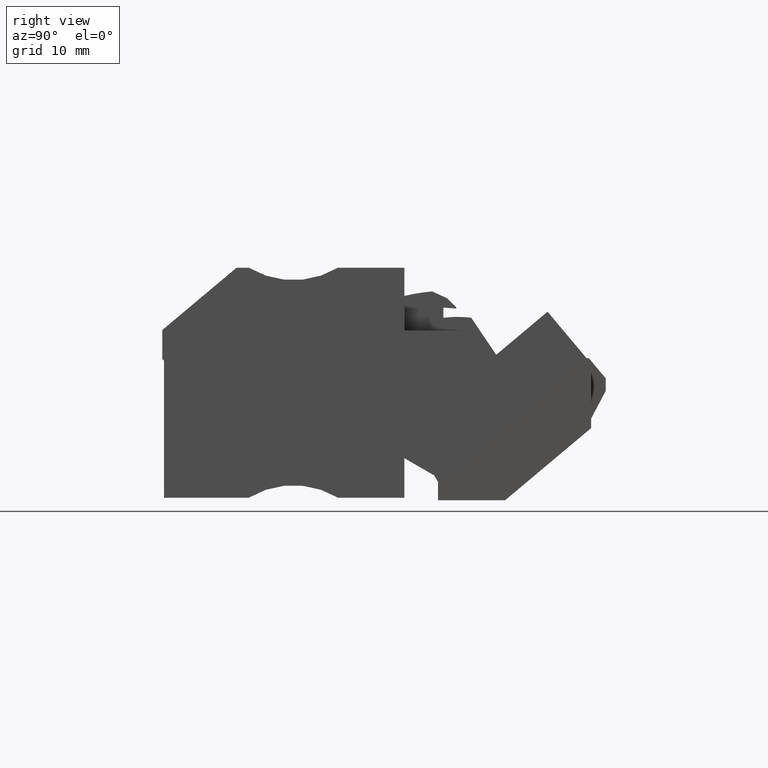
[diagram: clean part render]
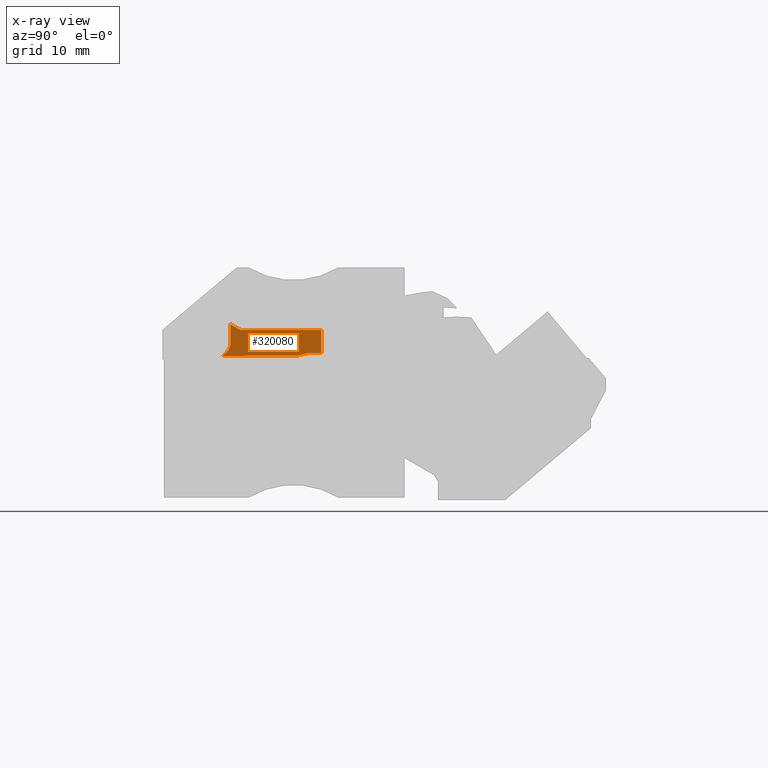
[diagram: x-ray — body ghosted, one internal face saturated and labeled with its STEP entity id]
A machine part, right view, then the same camera in x-ray: the body is ghosted and one INTERNAL B-rep face — a face not visible from any outside direction — is saturated and labeled: STEP entity #320080.
In plain terms, the highlighted planar face has unit normal (-1, 0, 0).
Its self-contained STEP definition (entity closure, byte-faithful):
#115130=CARTESIAN_POINT('',(423.016914991146,683.886335208509,
84.6699999829062));
#115140=DIRECTION('',(0.965925826756713,0.258819043357248,
-3.79102048216828E-11));
#115150=VECTOR('',#115140,1.);
#115160=LINE('',#115130,#115150);
#115170=CARTESIAN_POINT('',(436.068013272554,687.383366428071,
84.6699999823968));
#115180=VERTEX_POINT('',#115170);
#115190=CARTESIAN_POINT('',(437.004730016151,687.634358921055,
84.6699999823573));
#115200=VERTEX_POINT('',#115190);
#115210=EDGE_CURVE('',#115180,#115200,#115160,.T.);
#131800=CARTESIAN_POINT('',(428.516102331043,688.734358735133,
86.3199999829747));
#131810=DIRECTION('',(-1.,1.98497844528636E-9,-5.37042767448157E-11));
#131820=DIRECTION('',(-1.98495192504897E-9,-1.,4.42871223279918E-10));
#131830=AXIS2_PLACEMENT_3D('',#131800,#131810,#131820);
#131840=CONICAL_SURFACE('',#131830,1.4398990952349,0.5235987755983);
#141440=CARTESIAN_POINT('',(438.648616184603,676.714061019204,
84.6699999862829));
#141450=DIRECTION('',(5.59150170609455E-10,-1.,3.51221513140156E-10));
#141460=VECTOR('',#141450,1.);
#141470=LINE('',#141440,#141460);
#141480=CARTESIAN_POINT('',(438.648616176987,690.334347585901,
84.6699999814992));
#141490=VERTEX_POINT('',#141480);
#141500=CARTESIAN_POINT('',(438.648616178497,687.634358918162,
84.6699999824445));
#141510=VERTEX_POINT('',#141500);
#141520=EDGE_CURVE('',#141490,#141510,#141470,.T.);
#151470=CARTESIAN_POINT('',(416.568902626307,690.334347591075,
84.6699999802878));
#151480=DIRECTION('',(1.,-2.34350927552617E-10,5.48619602860575E-11));
#151490=VECTOR('',#151480,1.);
#151500=LINE('',#151470,#151490);
#151510=CARTESIAN_POINT('',(429.278049221869,690.334347588097,
84.6699999809851));
#151520=VERTEX_POINT('',#151510);
#151530=EDGE_CURVE('',#151520,#141490,#151500,.T.);
#289010=CARTESIAN_POINT('',(449.568914094368,687.634358898947,
84.6699999830466));
#289020=DIRECTION('',(1.,-1.75962394655114E-9,5.48619612102419E-11));
#289030=VECTOR('',#289020,1.);
#289040=LINE('',#289010,#289030);
#289050=EDGE_CURVE('',#115200,#141510,#289040,.T.);
#319070=CARTESIAN_POINT('',(439.003158794564,695.383861714499,
84.6699999797451));
#319080=DIRECTION('',(5.48619395602313E-11,-3.51221505597609E-10,-1.));
#319090=DIRECTION('',(-1.32734873092824E-9,-1.,3.51221505524789E-10));
#319100=AXIS2_PLACEMENT_3D('',#319070,#319080,#319090);
#319110=PLANE('',#319100);
#319120=ORIENTED_EDGE('',*,*,#141520,.F.);
#319130=ORIENTED_EDGE('',*,*,#289050,.T.);
#319140=ORIENTED_EDGE('',*,*,#115210,.T.);
#319150=CARTESIAN_POINT('',(419.663047713779,687.240202495097,
84.6699999815443));
#319160=DIRECTION('',(0.999961923081495,0.00872653351327912,
5.17949545808724E-11));
#319170=VECTOR('',#319160,1.);
#319180=LINE('',#319150,#319170);
#319190=CARTESIAN_POINT('',(427.230390921099,687.306241683771,
84.6699999819363));
#319200=VERTEX_POINT('',#319190);
#319210=EDGE_CURVE('',#319200,#115180,#319180,.T.);
#319220=ORIENTED_EDGE('',*,*,#319210,.T.);
#319230=CARTESIAN_POINT('',(427.230390921223,687.306241683898,
84.6699999819365));
#319240=CARTESIAN_POINT('',(427.269687427298,687.34090938432,
84.6699999819265));
#319250=CARTESIAN_POINT('',(427.308660575153,687.376011359042,
84.669999981916));
#319260=CARTESIAN_POINT('',(427.347205621983,687.411589676223,
84.6699999819056));
#319270=CARTESIAN_POINT('',(427.385750737358,687.447168056674,
84.6699999818953));
#319280=CARTESIAN_POINT('',(427.423868616499,687.483222890919,
84.6699999818847));
#319290=CARTESIAN_POINT('',(427.461441353598,687.519816115706,
84.6699999818739));
#319300=CARTESIAN_POINT('',(427.499014085738,687.556409335662,
84.6699999818631));
#319310=CARTESIAN_POINT('',(427.536043212389,687.593541417054,
84.6699999818521));
#319320=CARTESIAN_POINT('',(427.572389378941,687.631299091695,
84.6699999818408));
#319330=CARTESIAN_POINT('',(427.590562532455,687.650178001981,
84.6699999818352));
#319340=CARTESIAN_POINT('',(427.608564700066,687.669213885159,
84.6699999818295));
#319350=CARTESIAN_POINT('',(427.626375481132,687.688420381307,
84.6699999818237));
#319360=CARTESIAN_POINT('',(427.644186247659,687.707626861776,
84.669999981818));
#319370=CARTESIAN_POINT('',(427.661805729214,687.727004008141,
84.6699999818252));
#319380=CARTESIAN_POINT('',(427.679210680864,687.746567394765,
84.6699999818193));
#319390=B_SPLINE_CURVE_WITH_KNOTS('',3,(#319230,#319240,#319250,#319260,
#319270,#319280,#319290,#319300,#319310,#319320,#319330,#319340,#319350,
#319360,#319370,#319380),.UNSPECIFIED.,.F.,.F.,(4,3,3,3,3,4),(0.,
0.157305173026817,0.314671771744464,0.471961512916391,0.550558712877485,
0.62912621570121),.UNSPECIFIED.);
#319400=SURFACE_CURVE('',#319390,(#131840,#319110),.CURVE_3D.);
#319410=CARTESIAN_POINT('',(427.679210681164,687.746567395169,
84.6699999818062));
#319420=VERTEX_POINT('',#319410);
#319430=EDGE_CURVE('',#319200,#319420,#319400,.T.);
#319440=ORIENTED_EDGE('',*,*,#319430,.F.);
#319450=CARTESIAN_POINT('',(428.152196886817,688.734358735119,
84.6699999814852));
#319460=CARTESIAN_POINT('',(428.152196886767,688.71114176503,
84.6699999814934));
#319470=CARTESIAN_POINT('',(428.151347710352,688.687915861699,
84.6699999815015));
#319480=CARTESIAN_POINT('',(428.149649965734,688.66468306952,
84.6699999815096));
#319490=CARTESIAN_POINT('',(428.147952567501,688.641455017441,
84.6699999815177));
#319500=CARTESIAN_POINT('',(428.14540695124,688.618241432146,
84.6699999815259));
#319510=CARTESIAN_POINT('',(428.142037669133,688.595109634627,
84.6699999815338));
#319520=CARTESIAN_POINT('',(428.138668418618,688.571978054,
84.6699999815418));
#319530=CARTESIAN_POINT('',(428.13447592362,688.548930721069,
84.6699999815507));
#319540=CARTESIAN_POINT('',(428.129508912972,688.526036925603,
84.6699999815585));
#319550=CARTESIAN_POINT('',(428.12454190921,688.503143161877,
84.6699999815663));
#319560=CARTESIAN_POINT('',(428.118801074785,688.480404882594,
84.6699999815747));
#319570=CARTESIAN_POINT('',(428.112355610436,688.457886431949,
84.6699999815823));
#319580=CARTESIAN_POINT('',(428.105910116544,688.435367878093,
84.6699999815899));
#319590=CARTESIAN_POINT('',(428.098760734364,688.413070475355,
84.6699999815958));
#319600=CARTESIAN_POINT('',(428.090991235594,688.39104963742,
84.6699999816031));
#319610=CARTESIAN_POINT('',(428.083221555879,688.369028286638,
84.6699999816104));
#319620=CARTESIAN_POINT('',(428.074832942172,688.347285604638,
84.669999981617));
#319630=CARTESIAN_POINT('',(428.065915773341,688.325862621752,
84.669999981624));
#319640=CARTESIAN_POINT('',(428.056995444876,688.304432048029,
84.669999981631));
#319650=CARTESIAN_POINT('',(428.04751292646,688.283239181667,
84.6699999816379));
#319660=CARTESIAN_POINT('',(428.037525103461,688.262275803418,
84.6699999816448));
#319670=CARTESIAN_POINT('',(428.027537240378,688.241312341036,
84.6699999816516));
#319680=CARTESIAN_POINT('',(428.017043974993,688.220578103932,
84.6699999816583));
#319690=CARTESIAN_POINT('',(428.006097951984,688.200064041371,
84.6699999816649));
#319700=CARTESIAN_POINT('',(427.995151901177,688.179549926713,
84.6699999816715));
#319710=CARTESIAN_POINT('',(427.983752971718,688.159255761642,
84.669999981678));
#319720=CARTESIAN_POINT('',(427.971949902577,688.139172811379,
84.6699999816844));
#319730=CARTESIAN_POINT('',(427.960146818217,688.119089835221,
84.6699999816908));
#319740=CARTESIAN_POINT('',(427.947939471827,688.099217896713,
84.6699999816971));
#319750=CARTESIAN_POINT('',(427.93537326702,688.079549371528,
84.6699999817033));
#319760=CARTESIAN_POINT('',(427.910241153946,688.040212785298,
84.6699999817158));
#319770=CARTESIAN_POINT('',(427.88367453467,688.001686323706,
84.6699999817278));
#319780=CARTESIAN_POINT('',(427.856007576727,687.963930850294,
84.6699999817396));
#319790=CARTESIAN_POINT('',(427.828340681538,687.926175462518,
84.6699999817513));
#319800=CARTESIAN_POINT('',(427.799571019165,687.889188971262,
84.6699999817627));
#319810=CARTESIAN_POINT('',(427.770005847583,687.852961140362,
84.6699999817738));
#319820=CARTESIAN_POINT('',(427.740440833558,687.816733502524,
84.6699999817849));
#319830=CARTESIAN_POINT('',(427.710078897562,687.781263662309,
84.6699999817958));
#319840=CARTESIAN_POINT('',(427.679210681164,687.746567395169,
84.6699999818062));
#319850=B_SPLINE_CURVE_WITH_KNOTS('',3,(#319450,#319460,#319470,#319480,
#319490,#319500,#319510,#319520,#319530,#319540,#319550,#319560,#319570,
#319580,#319590,#319600,#319610,#319620,#319630,#319640,#319650,#319660,
#319670,#319680,#319690,#319700,#319710,#319720,#319730,#319740,#319750,
#319760,#319770,#319780,#319790,#319800,#319810,#319820,#319830,#319840)
,.UNSPECIFIED.,.F.,.F.,(4,3,3,3,3,3,3,3,3,3,3,3,3,4),(0.,
0.0697376606873931,0.139741293086688,0.209955002738327,0.280243491824752
,0.350422486854652,0.420274949246358,0.489919273095834,0.559624427119296
,0.629442190659224,0.69939480988247,0.839656142116061,0.980066359932564,
1.1199461316398),.UNSPECIFIED.);
#319860=SURFACE_CURVE('',#319850,(#319110,#131840),.CURVE_3D.);
#319870=CARTESIAN_POINT('',(428.152196886776,688.734358735122,
84.6699999814853));
#319880=VERTEX_POINT('',#319870);
#319890=EDGE_CURVE('',#319880,#319420,#319860,.T.);
#319900=ORIENTED_EDGE('',*,*,#319890,.T.);
#319910=CARTESIAN_POINT('',(428.152196917056,702.907704932485,
84.6699999765072));
#319920=DIRECTION('',(2.13640555246622E-9,1.,-3.51221506101979E-10));
#319930=VECTOR('',#319920,1.);
#319940=LINE('',#319910,#319930);
#319950=CARTESIAN_POINT('',(428.152196891709,690.984358736059,
84.6699999807675));
#319960=VERTEX_POINT('',#319950);
#319970=EDGE_CURVE('',#319880,#319960,#319940,.T.);
#319980=ORIENTED_EDGE('',*,*,#319970,.F.);
#319990=CARTESIAN_POINT('',(443.85366629827,681.919111118561,
84.6699999847403));
#320000=DIRECTION('',(-0.866025403093094,0.500000001197445,
-2.23122558293731E-10));
#320010=VECTOR('',#320000,1.);
#320020=LINE('',#319990,#320010);
#320030=EDGE_CURVE('',#151520,#319960,#320020,.T.);
#320040=ORIENTED_EDGE('',*,*,#320030,.T.);
#320050=ORIENTED_EDGE('',*,*,#151530,.F.);
#320060=EDGE_LOOP('',(#320050,#320040,#319980,#319900,#319440,#319220,
#319140,#319130,#319120));
#320070=FACE_OUTER_BOUND('',#320060,.T.);
#320080=ADVANCED_FACE('',(#320070),#319110,.F.);